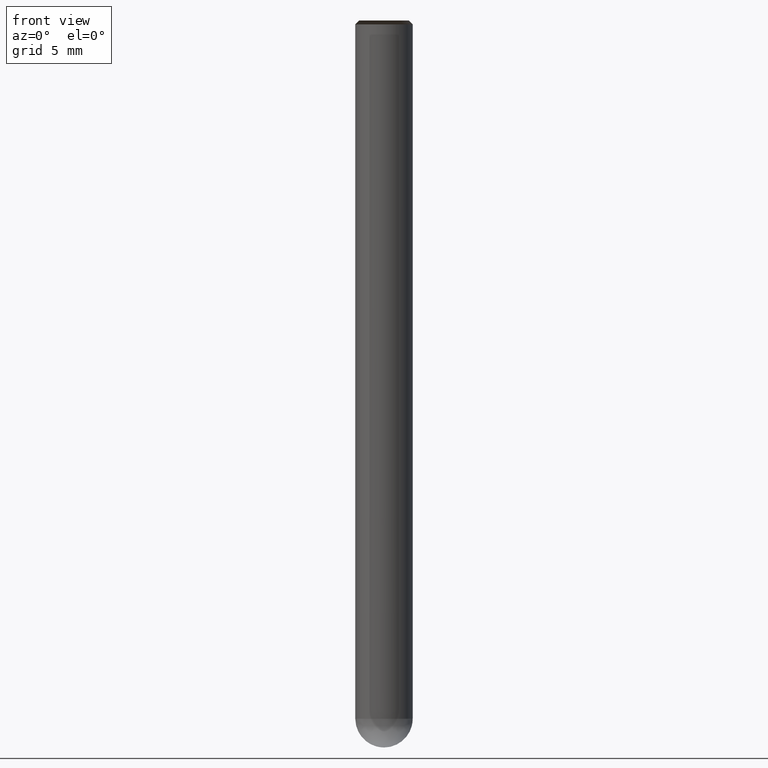
[diagram: clean part render]
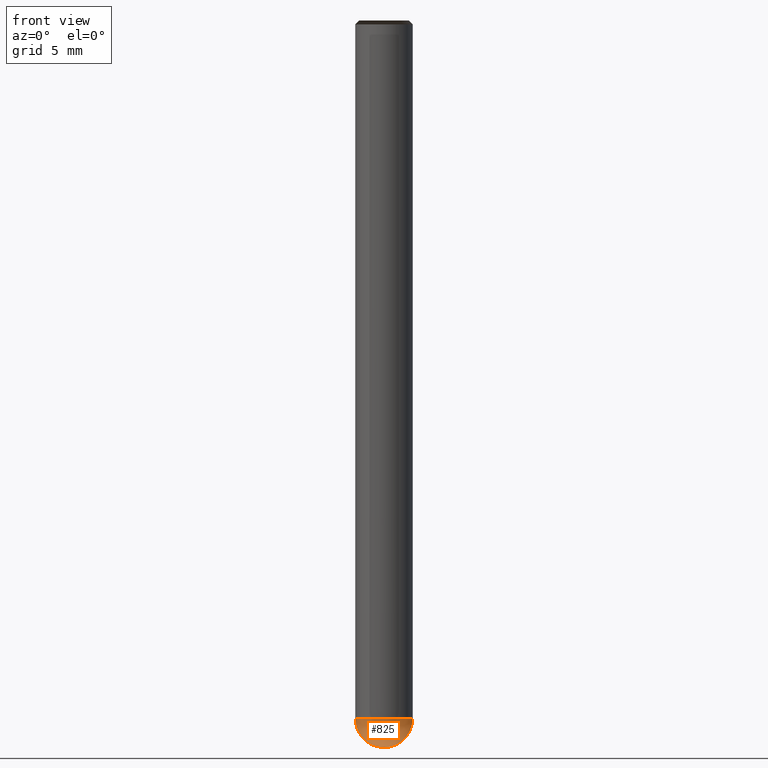
[diagram: same view with one face highlighted and labeled with its STEP entity id]
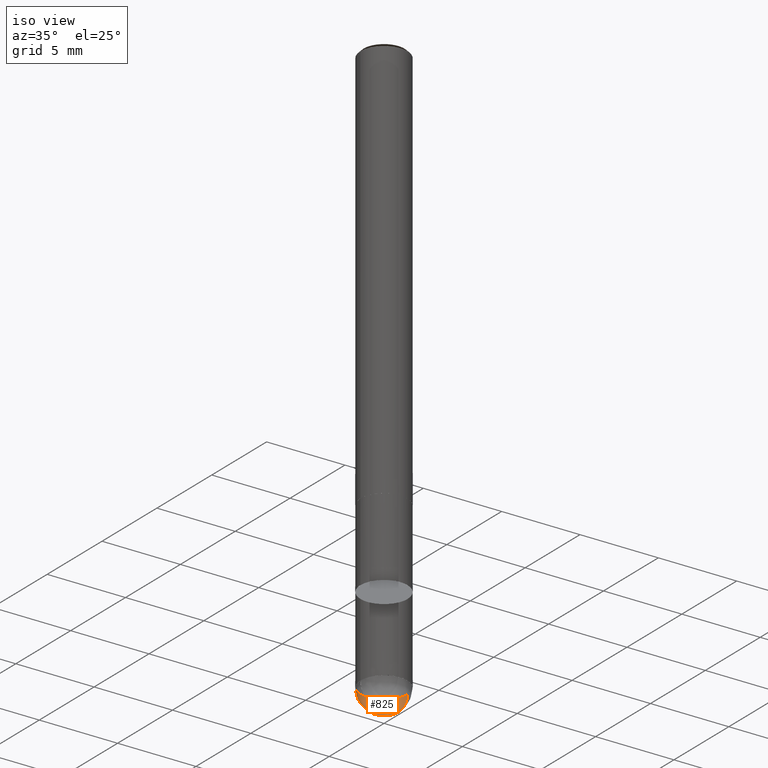
[diagram: same view with one face highlighted and labeled with its STEP entity id]
A machine part, front view. The second image highlights one B-rep face of the part: STEP entity #825.
A second angle (iso view) of the same face is appended — the face is thin or edge-on in the first view.
In plain terms, the highlighted face is a freeform B-spline surface patch.
Its self-contained STEP definition (entity closure, byte-faithful):
#700=CARTESIAN_POINT('',(0.0,0.0,-12.0));
#701=CARTESIAN_POINT('',(1.5,0.0,-12.0));
#705=CARTESIAN_POINT('',(-1.5,0.0,-12.0));
#706=CARTESIAN_POINT('',(1.5,0.0,-10.5));
#710=CARTESIAN_POINT('',(-1.5,0.0,-10.5));
#717=CARTESIAN_POINT('',(-1.5,-1.5,-12.0));
#718=CARTESIAN_POINT('',(0.0,-1.5,-12.0));
#719=CARTESIAN_POINT('',(1.5,-1.5,-12.0));
#720=CARTESIAN_POINT('',(-1.5,-1.5,-10.5));
#721=CARTESIAN_POINT('',(0.0,-1.5,-10.5));
#722=CARTESIAN_POINT('',(1.5,-1.5,-10.5));
#810=(
BOUNDED_SURFACE()
B_SPLINE_SURFACE(2,2,(
(#700,#700,#700,#700,#700),
(#705,#717,#718,#719,#701),
(#710,#720,#721,#722,#706)
), .UNSPECIFIED.,.F.,.F.,.F.)
B_SPLINE_SURFACE_WITH_KNOTS((3,3),(3,2,3),(
0.0,1.0),(
0.0,0.5,1.0), .UNSPECIFIED.)
GEOMETRIC_REPRESENTATION_ITEM()
RATIONAL_B_SPLINE_SURFACE(((1.0,0.707106781187,1.0,0.707106781187,1.0),
(0.707106781187,0.5,0.707106781187,0.5,0.707106781187),
(1.0,0.707106781187,1.0,0.707106781187,1.0)
))
REPRESENTATION_ITEM('')
SURFACE()
);
#811=(
BOUNDED_CURVE()
B_SPLINE_CURVE(2,(#706,#701,#700),.UNSPECIFIED.,.F.,.F.)
B_SPLINE_CURVE_WITH_KNOTS((3,3),
(0.0,1.0),.UNSPECIFIED.)
CURVE()
GEOMETRIC_REPRESENTATION_ITEM()
RATIONAL_B_SPLINE_CURVE((1.0,0.707106781187,1.0))
REPRESENTATION_ITEM('')
);
#812=(
BOUNDED_CURVE()
B_SPLINE_CURVE(2,(#700,#705,#710),.UNSPECIFIED.,.F.,.F.)
B_SPLINE_CURVE_WITH_KNOTS((3,3),
(0.0,1.0),.UNSPECIFIED.)
CURVE()
GEOMETRIC_REPRESENTATION_ITEM()
RATIONAL_B_SPLINE_CURVE((1.0,0.707106781187,1.0))
REPRESENTATION_ITEM('')
);
#813=(
BOUNDED_CURVE()
B_SPLINE_CURVE(2,(#710,#720,#721,#722,#706),.UNSPECIFIED.,.F.,.F.)
B_SPLINE_CURVE_WITH_KNOTS((3,2,3),
(0.0,0.5,1.0),.UNSPECIFIED.)
CURVE()
GEOMETRIC_REPRESENTATION_ITEM()
RATIONAL_B_SPLINE_CURVE((1.0,0.707106781187,1.0,0.707106781187,1.0))
REPRESENTATION_ITEM('')
);
#814=VERTEX_POINT('',#700);
#815=VERTEX_POINT('',#706);
#816=VERTEX_POINT('',#710);
#817=EDGE_CURVE('',#815,#814,#811,.T.);
#818=EDGE_CURVE('',#814,#816,#812,.T.);
#819=EDGE_CURVE('',#816,#815,#813,.T.);
#820=ORIENTED_EDGE('',*,*,#817,.T.);
#821=ORIENTED_EDGE('',*,*,#818,.T.);
#822=ORIENTED_EDGE('',*,*,#819,.T.);
#823=EDGE_LOOP('',(#820,#821,#822));
#824=FACE_OUTER_BOUND('',#823,.T.);
#825=ADVANCED_FACE('',(#824),#810,.T.);